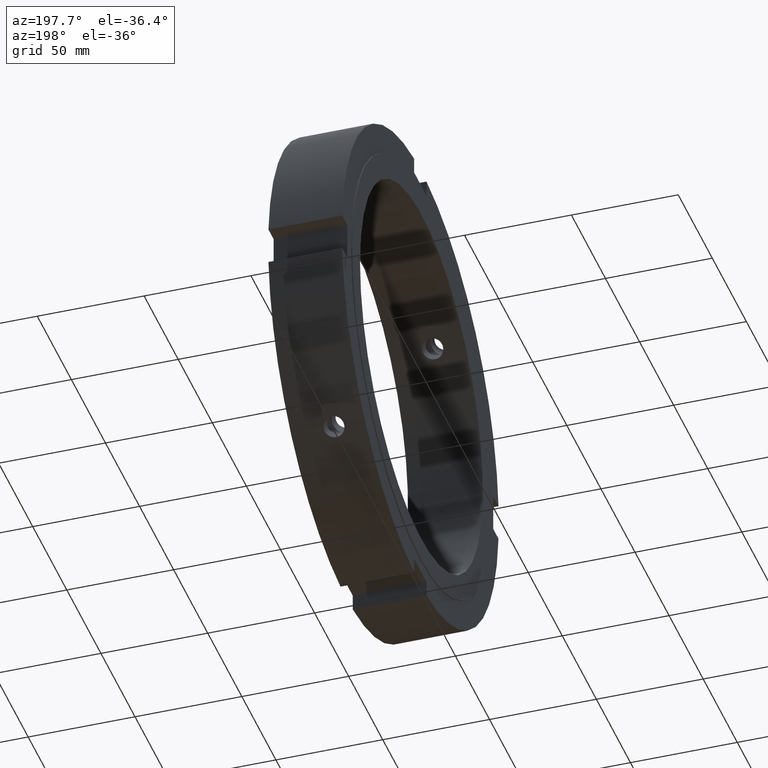
[diagram: clean part render]
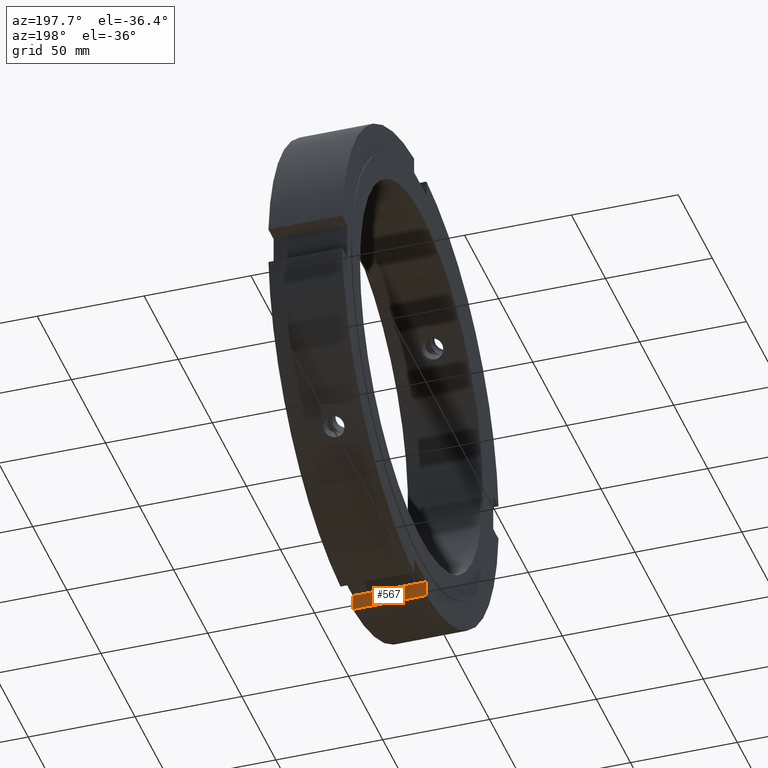
[diagram: same view with one face highlighted and labeled with its STEP entity id]
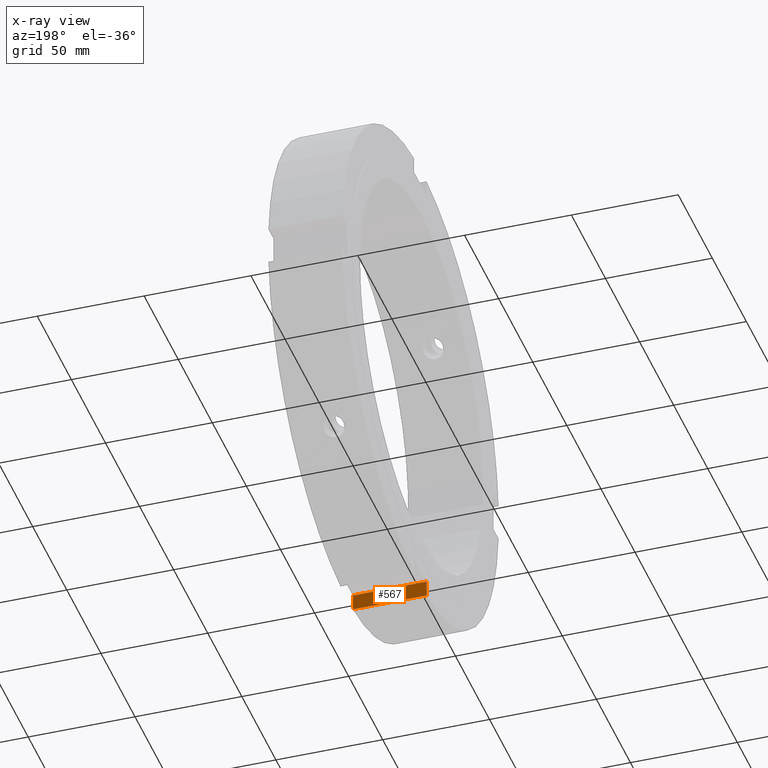
[diagram: x-ray of the same camera — body ghosted, the highlighted face saturated]
A machine part, auxiliary view. The second image highlights one B-rep face of the part: STEP entity #567.
The next image is the same camera in x-ray: the body ghosted, the highlighted face saturated — about 0% of this face is hidden behind the body in this view.
In plain terms, the highlighted planar face has unit normal (0, -1, 0).
Its self-contained STEP definition (entity closure, byte-faithful):
#528=CARTESIAN_POINT('',(34.999999999999972,-9.000000000000014,-107.0));
#529=DIRECTION('',(0.0,-1.0,0.0));
#530=DIRECTION('',(-1.0,0.0,0.0));
#531=AXIS2_PLACEMENT_3D('',#528,#529,#530);
#532=PLANE('',#531);
#533=CARTESIAN_POINT('',(0.499999999999972,-9.000000000000014,-107.0));
#534=VERTEX_POINT('',#533);
#535=CARTESIAN_POINT('',(0.499999999999967,-9.000000000000014,-114.64728518373209));
#536=VERTEX_POINT('',#535);
#537=CARTESIAN_POINT('',(0.499999999999969,-9.000000000000023,-107.0));
#538=DIRECTION('',(0.0,0.0,-1.0));
#539=VECTOR('',#538,7.647285183732109);
#540=LINE('',#537,#539);
#541=EDGE_CURVE('',#534,#536,#540,.T.);
#542=ORIENTED_EDGE('',*,*,#541,.F.);
#543=CARTESIAN_POINT('',(34.999999999999972,-9.000000000000014,-107.0));
#544=VERTEX_POINT('',#543);
#545=CARTESIAN_POINT('',(34.999999999999972,-9.000000000000014,-107.0));
#546=DIRECTION('',(-1.0,0.0,0.0));
#547=VECTOR('',#546,34.5);
#548=LINE('',#545,#547);
#549=EDGE_CURVE('',#544,#534,#548,.T.);
#550=ORIENTED_EDGE('',*,*,#549,.F.);
#551=CARTESIAN_POINT('',(34.999999999999972,-9.000000000000014,-114.64728518373209));
#552=VERTEX_POINT('',#551);
#553=CARTESIAN_POINT('',(34.999999999999972,-9.000000000000025,-114.64728518373211));
#554=DIRECTION('',(0.0,0.0,1.0));
#555=VECTOR('',#554,7.647285183732109);
#556=LINE('',#553,#555);
#557=EDGE_CURVE('',#552,#544,#556,.T.);
#558=ORIENTED_EDGE('',*,*,#557,.F.);
#559=CARTESIAN_POINT('',(0.499999999999968,-9.000000000000016,-114.64728518373209));
#560=DIRECTION('',(1.0,0.0,0.0));
#561=VECTOR('',#560,34.5);
#562=LINE('',#559,#561);
#563=EDGE_CURVE('',#536,#552,#562,.T.);
#564=ORIENTED_EDGE('',*,*,#563,.F.);
#565=EDGE_LOOP('',(#542,#550,#558,#564));
#566=FACE_OUTER_BOUND('',#565,.T.);
#567=ADVANCED_FACE('',(#566),#532,.F.);